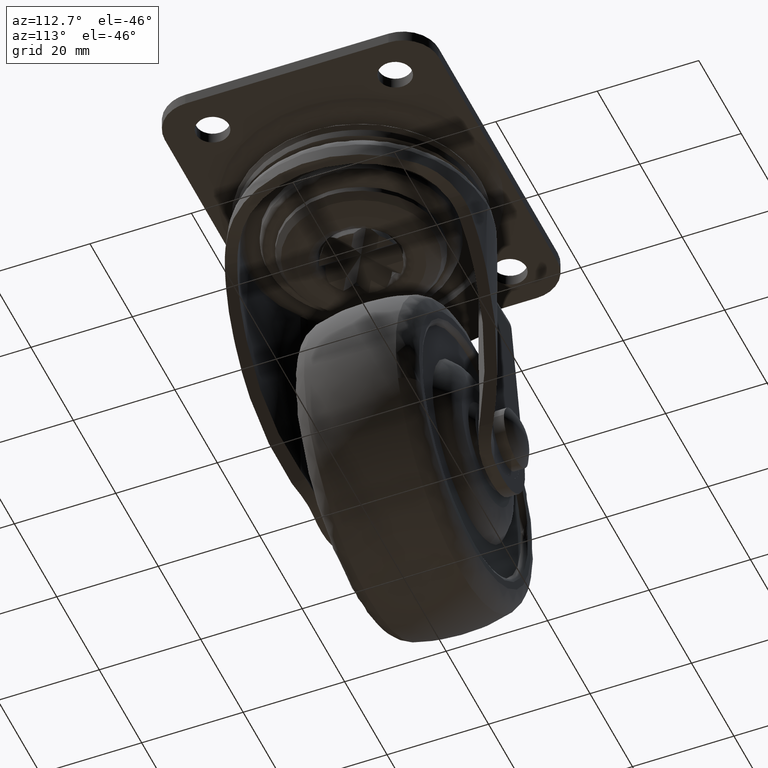
[diagram: clean part render]
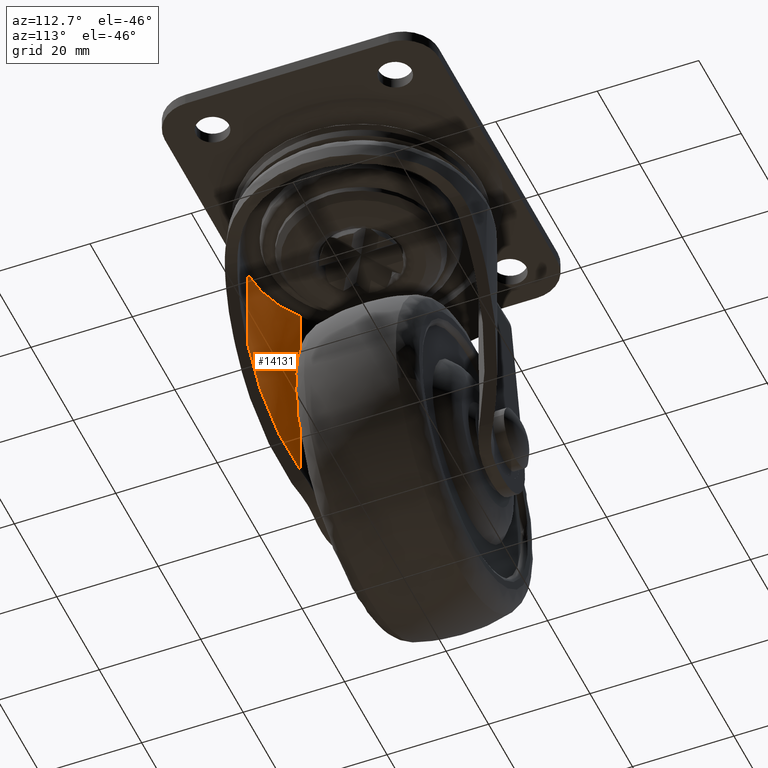
[diagram: same view with one face highlighted and labeled with its STEP entity id]
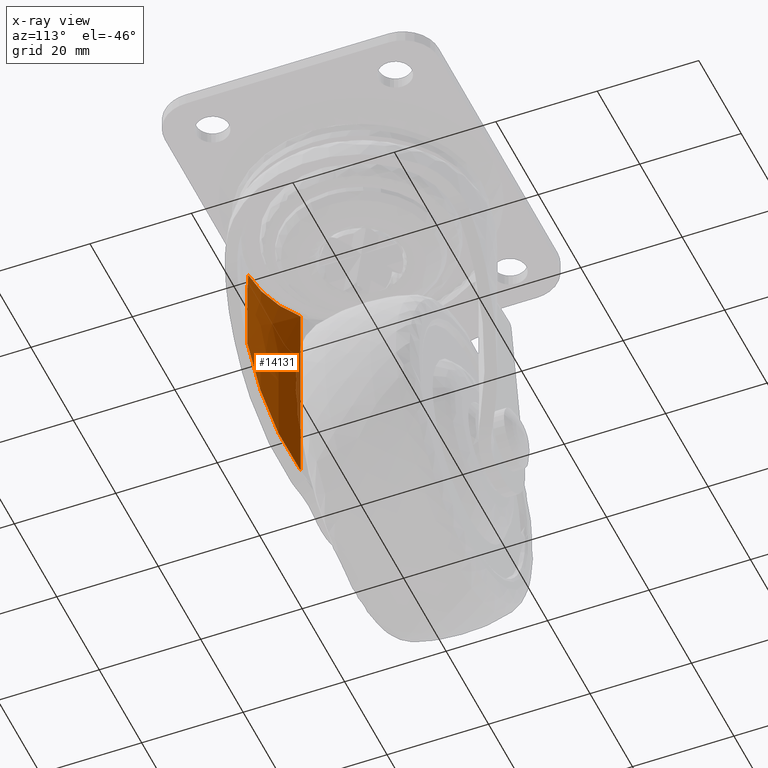
[diagram: x-ray of the same camera — body ghosted, the highlighted face saturated]
A machine part, auxiliary view. The second image highlights one B-rep face of the part: STEP entity #14131.
The next image is the same camera in x-ray: the body ghosted, the highlighted face saturated — about 4% of this face is hidden behind the body in this view.
In plain terms, the highlighted face is a freeform B-spline surface patch.
Its self-contained STEP definition (entity closure, byte-faithful):
#9606=CARTESIAN_POINT('',(-13.781632184325000,-17.721995213180101,-12.338144000000000));
#9607=VERTEX_POINT('',#9606);
#10222=CARTESIAN_POINT('',(-0.439119854150790,-22.445705017969249,-12.338144000021799));
#10223=VERTEX_POINT('',#10222);
#10231=CARTESIAN_POINT('',(-13.781632184325000,-17.721995213180069,-12.338144000000000));
#10232=CARTESIAN_POINT('',(-7.894913794015567,-22.299842495725894,-12.338144000000000));
#10233=CARTESIAN_POINT('',(-0.439119854150790,-22.445705017969249,-12.338144000021799));
#10241=(BOUNDED_CURVE()B_SPLINE_CURVE(2,(#10231,#10232,#10233),.UNSPECIFIED.,.F.,.U.)CURVE()GEOMETRIC_REPRESENTATION_ITEM()QUASI_UNIFORM_CURVE()RATIONAL_B_SPLINE_CURVE((1.0,0.949013931679748,1.0))REPRESENTATION_ITEM(''));
#10242=EDGE_CURVE('',#9607,#10223,#10241,.T.);
#13368=CARTESIAN_POINT('',(-13.781632184325000,-17.721995213180101,-52.654191065557612));
#13369=VERTEX_POINT('',#13368);
#13383=CARTESIAN_POINT('',(-4.123862E-015,-22.449999999999999,-30.571963963621300));
#13384=VERTEX_POINT('',#13383);
#13385=CARTESIAN_POINT('',(-13.781632184324989,-17.721995213180069,-52.654191065557612));
#13386=CARTESIAN_POINT('',(-7.701824141325835,-22.450000000000006,-42.912550877656884));
#13387=CARTESIAN_POINT('',(-4.123862E-015,-22.449999999999999,-30.571963963621300));
#13395=(BOUNDED_CURVE()B_SPLINE_CURVE(2,(#13385,#13386,#13387),.UNSPECIFIED.,.F.,.U.)CURVE()GEOMETRIC_REPRESENTATION_ITEM()QUASI_UNIFORM_CURVE()RATIONAL_B_SPLINE_CURVE((1.0,0.945885418662253,1.0))REPRESENTATION_ITEM(''));
#13396=EDGE_CURVE('',#13369,#13384,#13395,.T.);
#13887=CARTESIAN_POINT('',(-13.781632184325000,-17.721995213180101,-12.338144000000000));
#13888=CARTESIAN_POINT('',(-13.781632184325000,-17.721995213180101,-52.654191065557612));
#13889=QUASI_UNIFORM_CURVE('',1,(#13887,#13888),.UNSPECIFIED.,.F.,.U.);
#13890=EDGE_CURVE('',#9607,#13369,#13889,.T.);
#13997=CARTESIAN_POINT('',(1.515450E-015,-22.449999999999999,-17.471764074454700));
#13998=VERTEX_POINT('',#13997);
#13999=CARTESIAN_POINT('',(2.125403E-015,-22.449999999999999,-17.471764074454651));
#14000=CARTESIAN_POINT('',(-0.063023418724824,-22.449999999999999,-16.615353578163319));
#14001=CARTESIAN_POINT('',(-0.130913188636053,-22.449737624914050,-15.759194086895841));
#14002=CARTESIAN_POINT('',(-0.277299630475110,-22.448406683000449,-14.047963618354069));
#14003=CARTESIAN_POINT('',(-0.355643104565287,-22.447338127647669,-13.192819113062860));
#14004=CARTESIAN_POINT('',(-0.439119854150798,-22.445705017969271,-12.338144000021799));
#14005=B_SPLINE_CURVE_WITH_KNOTS('',3,(#13999,#14000,#14001,#14002,#14003,#14004),.UNSPECIFIED.,.F.,.U.,(4,2,4),(0.0,0.500000000000000,1.0),.UNSPECIFIED.);
#14006=EDGE_CURVE('',#13998,#10223,#14005,.T.);
#14102=CARTESIAN_POINT('',(-4.123862E-015,-22.449999999999999,-30.571963963621300));
#14103=CARTESIAN_POINT('',(1.515450E-015,-22.449999999999999,-17.471764074454700));
#14104=QUASI_UNIFORM_CURVE('',1,(#14102,#14103),.UNSPECIFIED.,.F.,.U.);
#14105=EDGE_CURVE('',#13384,#13998,#14104,.T.);
#14110=CARTESIAN_POINT('',(0.638328982338094,-22.440923245497430,-53.662092242196543));
#14111=CARTESIAN_POINT('',(0.638328982338094,-22.440923245497430,-11.305045293945090));
#14112=CARTESIAN_POINT('',(-7.832516224858398,-22.681875275032933,-53.662092242196536));
#14113=CARTESIAN_POINT('',(-7.832516224858398,-22.681875275032933,-11.305045293945085));
#14114=CARTESIAN_POINT('',(-14.349685705721347,-17.265254708431506,-53.662092242196543));
#14115=CARTESIAN_POINT('',(-14.349685705721347,-17.265254708431506,-11.305045293945083));
#14123=(BOUNDED_SURFACE()B_SPLINE_SURFACE(1,2,((#14110,#14112,#14114),(#14111,#14113,#14115)),.UNSPECIFIED.,.F.,.F.,.U.)B_SPLINE_SURFACE_WITH_KNOTS((2,2),(3,3),(0.0,42.357046948251458),(0.0,16.384262434433339),.UNSPECIFIED.)GEOMETRIC_REPRESENTATION_ITEM()RATIONAL_B_SPLINE_SURFACE(((1.0,0.931642292530200,0.991629092799076),(1.0,0.931642292530200,0.991629092799076)))REPRESENTATION_ITEM('')SURFACE());
#14124=ORIENTED_EDGE('',*,*,#13890,.F.);
#14125=ORIENTED_EDGE('',*,*,#10242,.T.);
#14126=ORIENTED_EDGE('',*,*,#14006,.F.);
#14127=ORIENTED_EDGE('',*,*,#14105,.F.);
#14128=ORIENTED_EDGE('',*,*,#13396,.F.);
#14129=EDGE_LOOP('',(#14124,#14125,#14126,#14127,#14128));
#14130=FACE_OUTER_BOUND('',#14129,.T.);
#14131=ADVANCED_FACE('',(#14130),#14123,.F.);